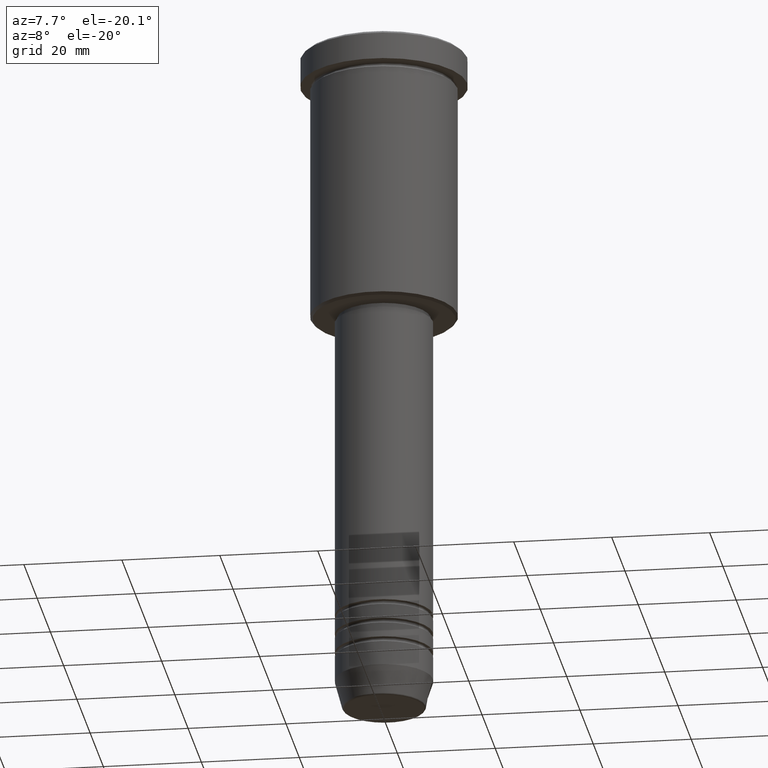
[diagram: clean part render]
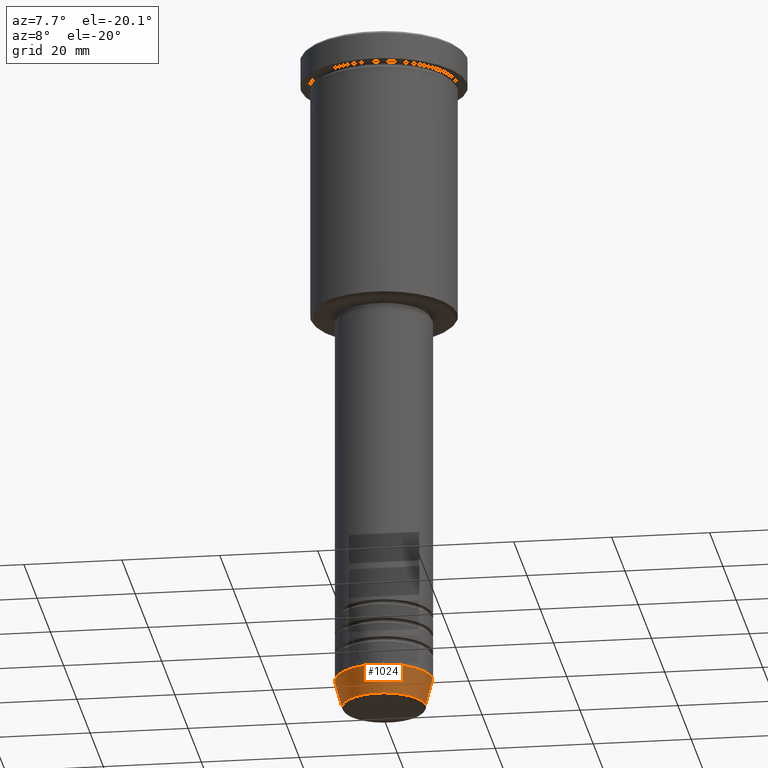
[diagram: same view with one face highlighted and labeled with its STEP entity id]
A machine part, auxiliary view. The second image highlights one B-rep face of the part: STEP entity #1024.
In plain terms, the highlighted conical surface has half-angle 15 deg.
Its self-contained STEP definition (entity closure, byte-faithful):
#28 = DIRECTION ( 'NONE',  ( 1.000000000000000000, 0.000000000000000000, 0.000000000000000000 ) ) ;
#49 = CARTESIAN_POINT ( 'NONE',  ( -8.491604264568316296, 1.132284198685156781E-15, -139.6294095225512706 ) ) ;
#84 = VERTEX_POINT ( 'NONE', #831 ) ;
#101 = EDGE_CURVE ( 'NONE', #84, #764, #429, .T. ) ;
#134 = EDGE_CURVE ( 'NONE', #165, #84, #865, .T. ) ;
#165 = VERTEX_POINT ( 'NONE', #49 ) ;
#178 = VERTEX_POINT ( 'NONE', #696 ) ;
#217 = DIRECTION ( 'NONE',  ( -0.000000000000000000, -0.000000000000000000, 1.000000000000000000 ) ) ;
#241 = ORIENTED_EDGE ( 'NONE', *, *, #551, .T. ) ;
#243 = EDGE_CURVE ( 'NONE', #178, #764, #961, .T. ) ;
#253 = CIRCLE ( 'NONE', #1092, 8.491604264568316296 ) ;
#308 = VECTOR ( 'NONE', #883, 1000.000000000000000 ) ;
#363 = DIRECTION ( 'NONE',  ( -0.000000000000000000, -0.000000000000000000, 1.000000000000000000 ) ) ;
#371 = DIRECTION ( 'NONE',  ( 1.000000000000000000, 0.000000000000000000, 0.000000000000000000 ) ) ;
#394 = ORIENTED_EDGE ( 'NONE', *, *, #134, .F. ) ;
#429 = CIRCLE ( 'NONE', #920, 10.00000000000000178 ) ;
#506 = AXIS2_PLACEMENT_3D ( 'NONE', #1176, #363, #371 ) ;
#511 = CARTESIAN_POINT ( 'NONE',  ( -10.00000000000000178, 1.224646799147353454E-15, -134.0000000000000000 ) ) ;
#519 = DIRECTION ( 'NONE',  ( 0.2588190451025214056, 0.000000000000000000, 0.9659258262890680902 ) ) ;
#529 = CARTESIAN_POINT ( 'NONE',  ( 10.00000000000000178, 0.000000000000000000, -134.0000000000000000 ) ) ;
#551 = EDGE_CURVE ( 'NONE', #165, #178, #253, .T. ) ;
#612 = CARTESIAN_POINT ( 'NONE',  ( 0.000000000000000000, 0.000000000000000000, -139.6294095225512706 ) ) ;
#614 = CARTESIAN_POINT ( 'NONE',  ( 10.00000000000000178, 0.000000000000000000, -134.0000000000000000 ) ) ;
#696 = CARTESIAN_POINT ( 'NONE',  ( 8.491604264568316296, 0.000000000000000000, -139.6294095225512706 ) ) ;
#744 = DIRECTION ( 'NONE',  ( -0.000000000000000000, -0.000000000000000000, 1.000000000000000000 ) ) ;
#764 = VERTEX_POINT ( 'NONE', #529 ) ;
#785 = ORIENTED_EDGE ( 'NONE', *, *, #101, .F. ) ;
#799 = CONICAL_SURFACE ( 'NONE', #506, 10.00000000000000178, 0.2617993877991501295 ) ;
#822 = FACE_OUTER_BOUND ( 'NONE', #1071, .T. ) ;
#831 = CARTESIAN_POINT ( 'NONE',  ( -10.00000000000000178, 1.224646799147353454E-15, -134.0000000000000000 ) ) ;
#852 = CARTESIAN_POINT ( 'NONE',  ( 0.000000000000000000, 0.000000000000000000, -134.0000000000000000 ) ) ;
#865 = LINE ( 'NONE', #511, #308 ) ;
#883 = DIRECTION ( 'NONE',  ( -0.2588190451025214056, 3.169619151431772953E-17, 0.9659258262890680902 ) ) ;
#920 = AXIS2_PLACEMENT_3D ( 'NONE', #852, #744, #28 ) ;
#961 = LINE ( 'NONE', #614, #1012 ) ;
#971 = DIRECTION ( 'NONE',  ( 1.000000000000000000, 0.000000000000000000, 0.000000000000000000 ) ) ;
#1012 = VECTOR ( 'NONE', #519, 1000.000000000000000 ) ;
#1024 = ADVANCED_FACE ( 'NONE', ( #822 ), #799, .T. ) ;
#1071 = EDGE_LOOP ( 'NONE', ( #394, #241, #1074, #785 ) ) ;
#1074 = ORIENTED_EDGE ( 'NONE', *, *, #243, .T. ) ;
#1092 = AXIS2_PLACEMENT_3D ( 'NONE', #612, #217, #971 ) ;
#1176 = CARTESIAN_POINT ( 'NONE',  ( 0.000000000000000000, 0.000000000000000000, -134.0000000000000000 ) ) ;